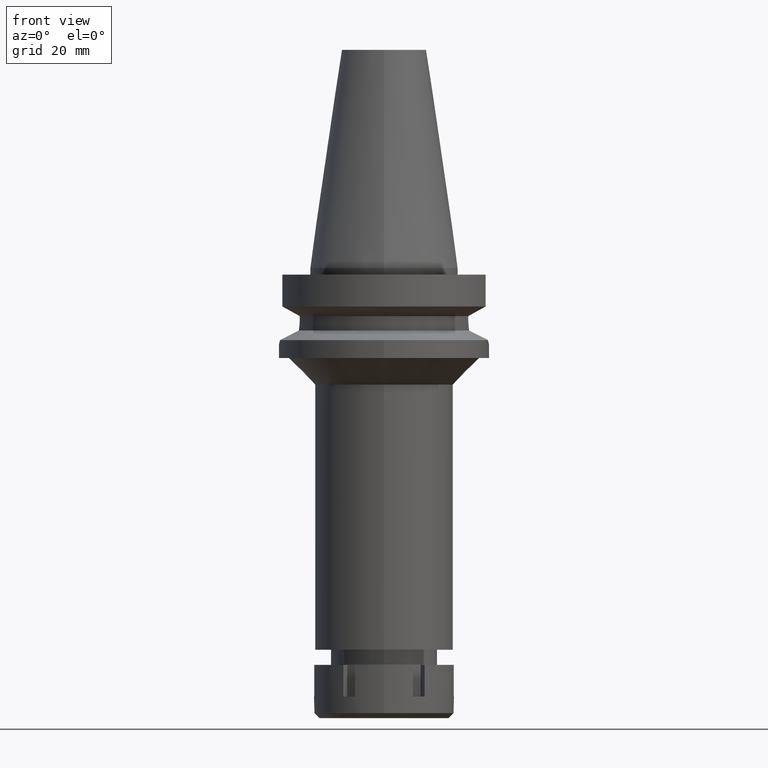
[diagram: clean part render]
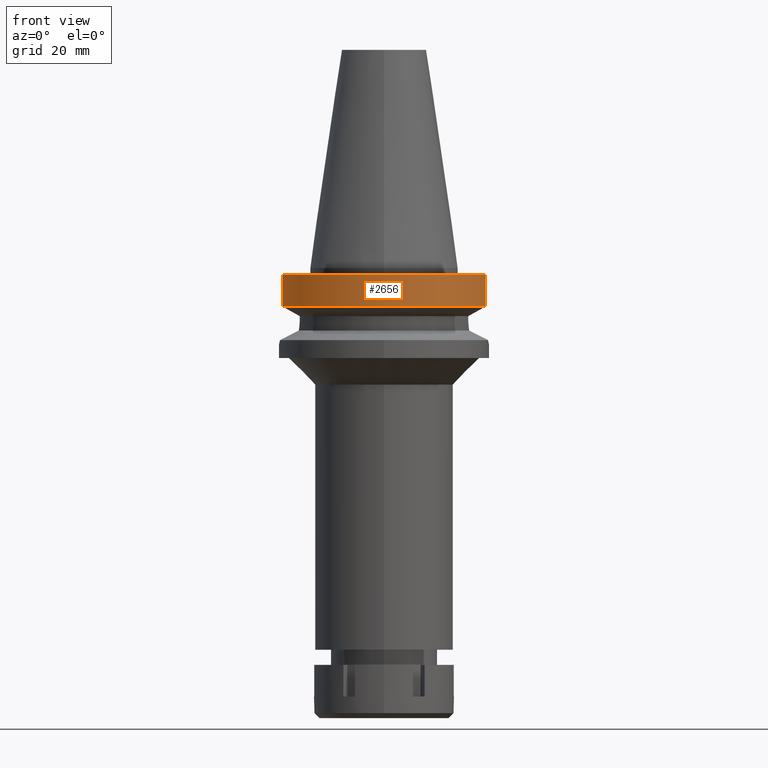
[diagram: same view with one face highlighted and labeled with its STEP entity id]
A machine part, front view. The second image highlights one B-rep face of the part: STEP entity #2656.
In plain terms, the highlighted cylindrical surface (partial cylindrical patch) has radius 31.5 mm, axis along (0, 0, -1).
Its self-contained STEP definition (entity closure, byte-faithful):
#172 = CARTESIAN_POINT ( 'NONE',  ( 30.45402272279000044, -8.050000000000000711, -2.000000000000000000 ) ) ;
#255 = DIRECTION ( 'NONE',  ( 0.0000000000000000000, -1.000000000000000000, 0.0000000000000000000 ) ) ;
#362 = VECTOR ( 'NONE', #1155, 1000.000000000000000 ) ;
#389 = CARTESIAN_POINT ( 'NONE',  ( 0.0000000000000000000, 2.143376827867999896E-14, -2.000000000000000000 ) ) ;
#537 = CIRCLE ( 'NONE', #2294, 31.50000000000000000 ) ;
#654 = EDGE_CURVE ( 'NONE', #2980, #1864, #537, .T. ) ;
#821 = LINE ( 'NONE', #3087, #362 ) ;
#930 = DIRECTION ( 'NONE',  ( 0.0000000000000000000, -1.000000000000000000, 0.0000000000000000000 ) ) ;
#984 = VECTOR ( 'NONE', #3486, 1000.000000000000227 ) ;
#1048 = DIRECTION ( 'NONE',  ( 0.0000000000000000000, 0.0000000000000000000, 1.000000000000000000 ) ) ;
#1079 = CARTESIAN_POINT ( 'NONE',  ( 30.45402272279000044, -8.049999999999000622, -11.56550565266999975 ) ) ;
#1155 = DIRECTION ( 'NONE',  ( -1.145104882232999419E-07, -4.332050019744998358E-07, -0.9999999999998996358 ) ) ;
#1429 = EDGE_CURVE ( 'NONE', #2280, #1864, #821, .T. ) ;
#1458 = CYLINDRICAL_SURFACE ( 'NONE', #2572, 31.50000000000000000 ) ;
#1475 = ORIENTED_EDGE ( 'NONE', *, *, #1429, .F. ) ;
#1541 = EDGE_CURVE ( 'NONE', #2280, #1825, #3626, .T. ) ;
#1782 = ORIENTED_EDGE ( 'NONE', *, *, #654, .T. ) ;
#1809 = CARTESIAN_POINT ( 'NONE',  ( -30.45402291359999936, -8.049999278117001111, -11.56551215450999948 ) ) ;
#1825 = VERTEX_POINT ( 'NONE', #3625 ) ;
#1864 = VERTEX_POINT ( 'NONE', #1079 ) ;
#1929 = EDGE_LOOP ( 'NONE', ( #2414, #1782, #1475, #3558 ) ) ;
#2048 = FACE_OUTER_BOUND ( 'NONE', #1929, .T. ) ;
#2163 = CARTESIAN_POINT ( 'NONE',  ( 0.0000000000000000000, 1.065333950388000029E-14, -11.56550565266999975 ) ) ;
#2201 = CARTESIAN_POINT ( 'NONE',  ( -30.45402291359999936, -8.049999278117001111, -11.56551215450999948 ) ) ;
#2280 = VERTEX_POINT ( 'NONE', #172 ) ;
#2294 = AXIS2_PLACEMENT_3D ( 'NONE', #2163, #1048, #255 ) ;
#2297 = CARTESIAN_POINT ( 'NONE',  ( 0.0000000000000000000, 2.143376827867999896E-14, 75.02000000000001023 ) ) ;
#2414 = ORIENTED_EDGE ( 'NONE', *, *, #3108, .F. ) ;
#2572 = AXIS2_PLACEMENT_3D ( 'NONE', #2297, #2582, #930 ) ;
#2582 = DIRECTION ( 'NONE',  ( 0.0000000000000000000, 0.0000000000000000000, -1.000000000000000000 ) ) ;
#2656 = ADVANCED_FACE ( 'NONE', ( #2048 ), #1458, .T. ) ;
#2869 = AXIS2_PLACEMENT_3D ( 'NONE', #389, #2901, #3184 ) ;
#2901 = DIRECTION ( 'NONE',  ( 0.0000000000000000000, 0.0000000000000000000, -1.000000000000000000 ) ) ;
#2980 = VERTEX_POINT ( 'NONE', #2201 ) ;
#3087 = CARTESIAN_POINT ( 'NONE',  ( 30.45402272279000044, -8.050000000000000711, -2.000000000000000000 ) ) ;
#3108 = EDGE_CURVE ( 'NONE', #2980, #1825, #3641, .T. ) ;
#3184 = DIRECTION ( 'NONE',  ( 0.0000000000000000000, -1.000000000000000000, 0.0000000000000000000 ) ) ;
#3486 = DIRECTION ( 'NONE',  ( 1.994839083396989225E-08, -7.546718605789956887E-08, 0.9999999999999968914 ) ) ;
#3558 = ORIENTED_EDGE ( 'NONE', *, *, #1541, .T. ) ;
#3625 = CARTESIAN_POINT ( 'NONE',  ( -30.45402272279000044, -8.050000000000000711, -2.000000000000000000 ) ) ;
#3626 = CIRCLE ( 'NONE', #2869, 31.50000000000000000 ) ;
#3641 = LINE ( 'NONE', #1809, #984 ) ;